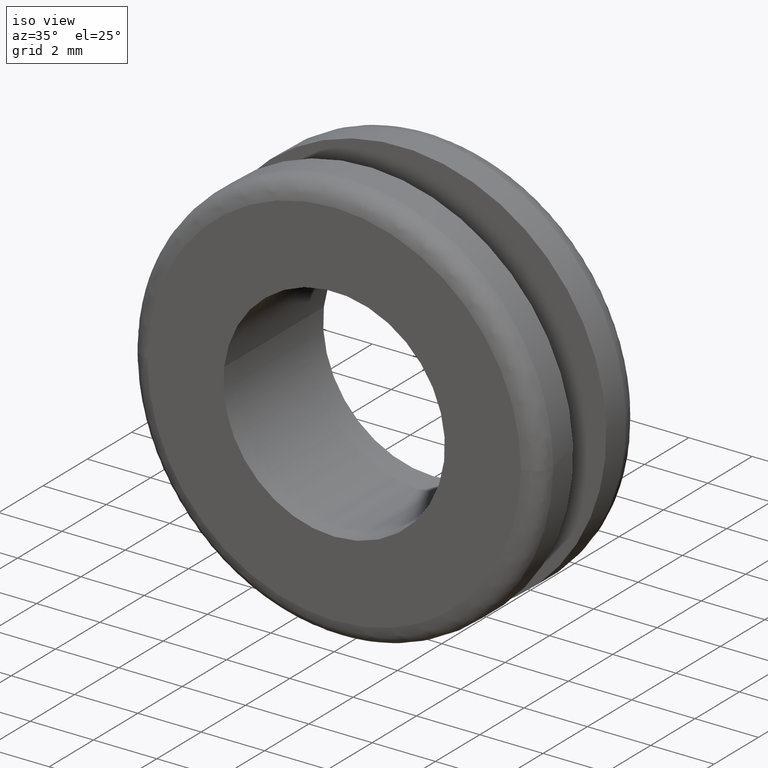
[diagram: clean part render]
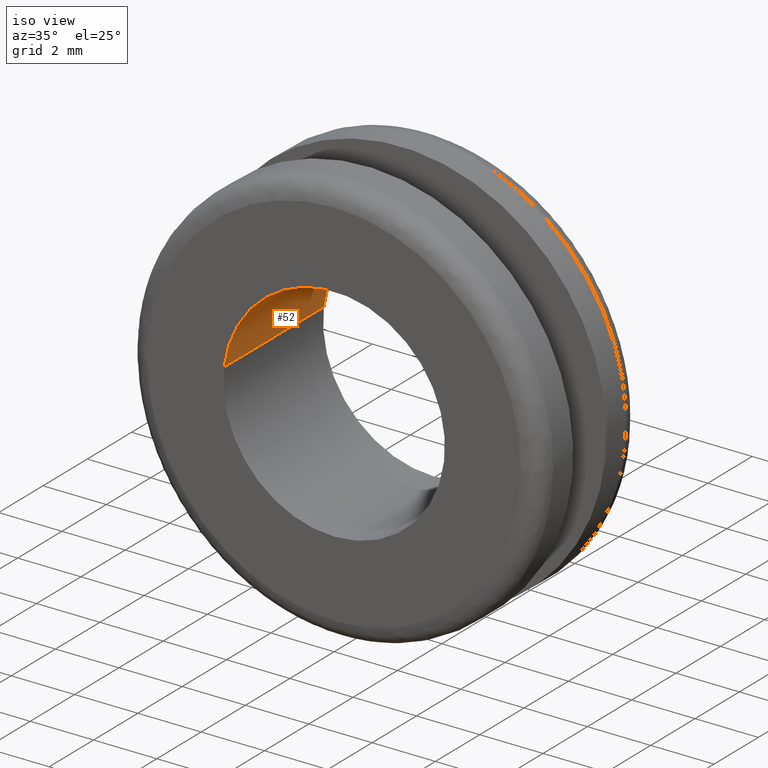
[diagram: same view with one face highlighted and labeled with its STEP entity id]
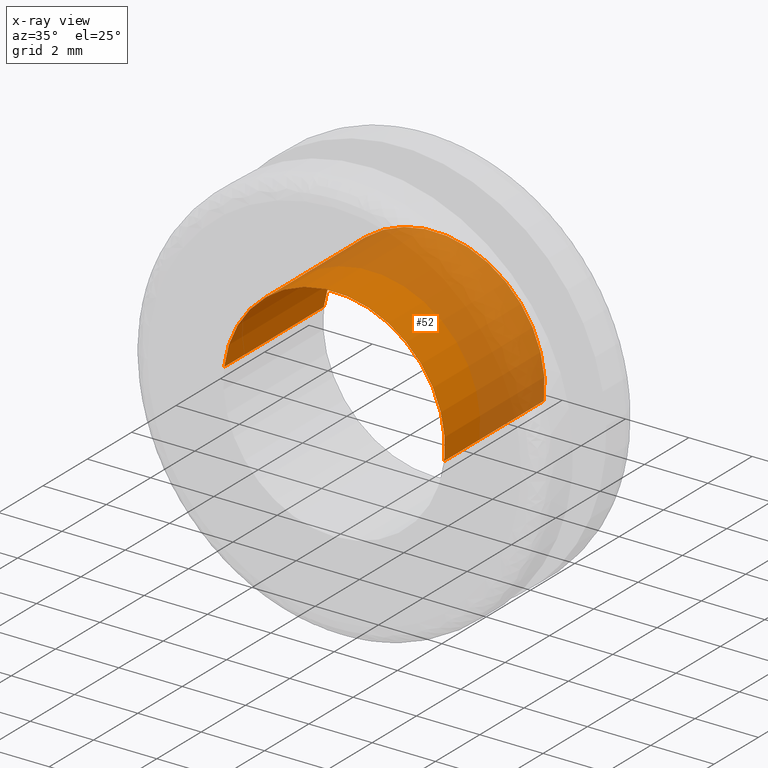
[diagram: x-ray of the same camera — body ghosted, the highlighted face saturated]
A machine part, iso view. The second image highlights one B-rep face of the part: STEP entity #52.
The next image is the same camera in x-ray: the body ghosted, the highlighted face saturated — about 57% of this face is hidden behind the body in this view.
In plain terms, the highlighted cylindrical surface (partial cylindrical patch) has radius 3.5 mm, axis along (-0, 1, -0).
Its self-contained STEP definition (entity closure, byte-faithful):
#52=ADVANCED_FACE('',(#181),#180,.F.);
#180=CYLINDRICAL_SURFACE('',#371,3.50000000000E+000);
#181=FACE_OUTER_BOUND('',#372,.T.);
#368=CARTESIAN_POINT('',(-3.02532469619E-013,4.50000000000E+000,-7.51689274686E-013));
#369=DIRECTION('',(-3.60124763988E-016,1.00000000000E+000,-1.95473636024E-015));
#370=DIRECTION('',(-9.93009593028E-001,-1.26882631386E-016,1.18033673816E-001));
#371=AXIS2_PLACEMENT_3D('',#368,#369,#370);
#372=EDGE_LOOP('',(#464,#465,#466,#467));
#464=ORIENTED_EDGE('',*,*,#508,.T.);
#465=ORIENTED_EDGE('',*,*,#531,.T.);
#466=ORIENTED_EDGE('',*,*,#502,.F.);
#467=ORIENTED_EDGE('',*,*,#532,.F.);
#502=EDGE_CURVE('',#641,#648,#649,.T.);
#508=EDGE_CURVE('',#690,#682,#691,.T.);
#531=EDGE_CURVE('',#682,#648,#842,.T.);
#532=EDGE_CURVE('',#690,#641,#848,.T.);
#641=VERTEX_POINT('',#942);
#648=VERTEX_POINT('',#947);
#649=CIRCLE('',#951,3.49999999999E+000);
#682=VERTEX_POINT('',#971);
#690=VERTEX_POINT('',#977);
#691=CIRCLE('',#981,3.49999999999E+000);
#842=(BOUNDED_CURVE() B_SPLINE_CURVE(1,(#1073,#1074),.UNSPECIFIED.,.F.,.F.) B_SPLINE_CURVE_WITH_KNOTS((2,2),(8.33333313467E-002,9.16666670832E-001),.UNSPECIFIED.) CURVE() GEOMETRIC_REPRESENTATION_ITEM() RATIONAL_B_SPLINE_CURVE((1.00000000000E+000,1.00000000000E+000)) REPRESENTATION_ITEM('') );
#848=(BOUNDED_CURVE() B_SPLINE_CURVE(1,(#1075,#1076),.UNSPECIFIED.,.F.,.F.) B_SPLINE_CURVE_WITH_KNOTS((2,2),(8.33333333333E-002,9.16666666667E-001),.UNSPECIFIED.) CURVE() GEOMETRIC_REPRESENTATION_ITEM() RATIONAL_B_SPLINE_CURVE((7.50000000000E-001,7.50000000000E-001)) REPRESENTATION_ITEM('') );
#942=CARTESIAN_POINT('',(3.47546212191E+000,4.50000000000E+000,-4.13718550637E-001));
#947=CARTESIAN_POINT('',(-3.47553372667E+000,4.50000000000E+000,4.13116587344E-001));
#948=CARTESIAN_POINT('',(2.72604161466E-012,4.50000000000E+000,6.00031135889E-012));
#949=DIRECTION('',(-3.34832142866E-015,-1.00000000000E+000,-1.95696105885E-014));
#950=DIRECTION('',(-7.78946351865E-013,1.95696105885E-014,-1.00000000000E+000));
#951=AXIS2_PLACEMENT_3D('',#948,#949,#950);
#971=CARTESIAN_POINT('',(-3.47553372667E+000,-4.82737399220E-016,4.13116587344E-001));
#977=CARTESIAN_POINT('',(3.47546212191E+000,-5.62575557824E-016,-4.13718550637E-001));
#978=CARTESIAN_POINT('',(2.66120459003E-012,-5.22773618531E-016,5.85753667792E-012));
#979=DIRECTION('',(-5.69750098369E-017,-1.00000000000E+000,-3.82415893714E-016));
#980=DIRECTION('',(-7.60086438234E-013,3.82415893714E-016,-1.00000000000E+000));
#981=AXIS2_PLACEMENT_3D('',#978,#979,#980);
#1073=CARTESIAN_POINT('',(-3.47553357560E+000,-1.07279536921E-008,4.13117858355E-001));
#1074=CARTESIAN_POINT('',(-3.47553357560E+000,4.50000002249E+000,4.13117858355E-001));
#1075=CARTESIAN_POINT('',(3.47553357560E+000,2.44249065418E-015,-4.13117858357E-001));
#1076=CARTESIAN_POINT('',(3.47553357560E+000,4.50000000000E+000,-4.13117858357E-001));